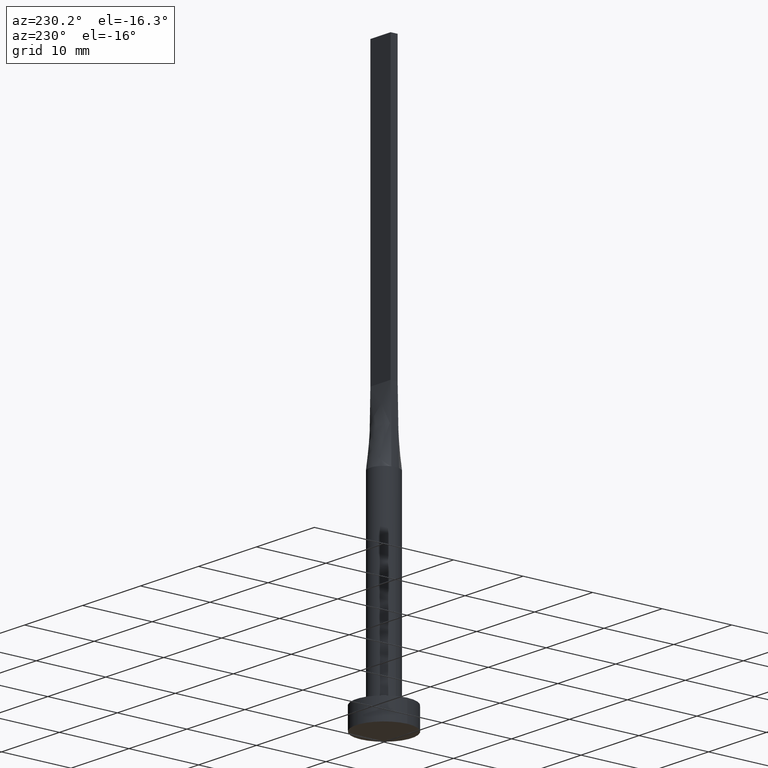
[diagram: clean part render]
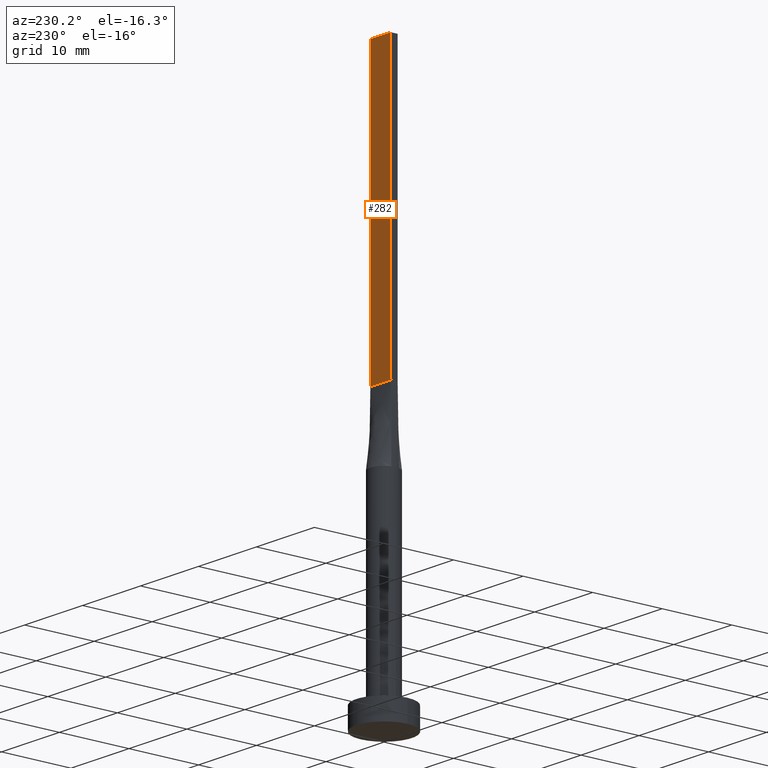
[diagram: same view with one face highlighted and labeled with its STEP entity id]
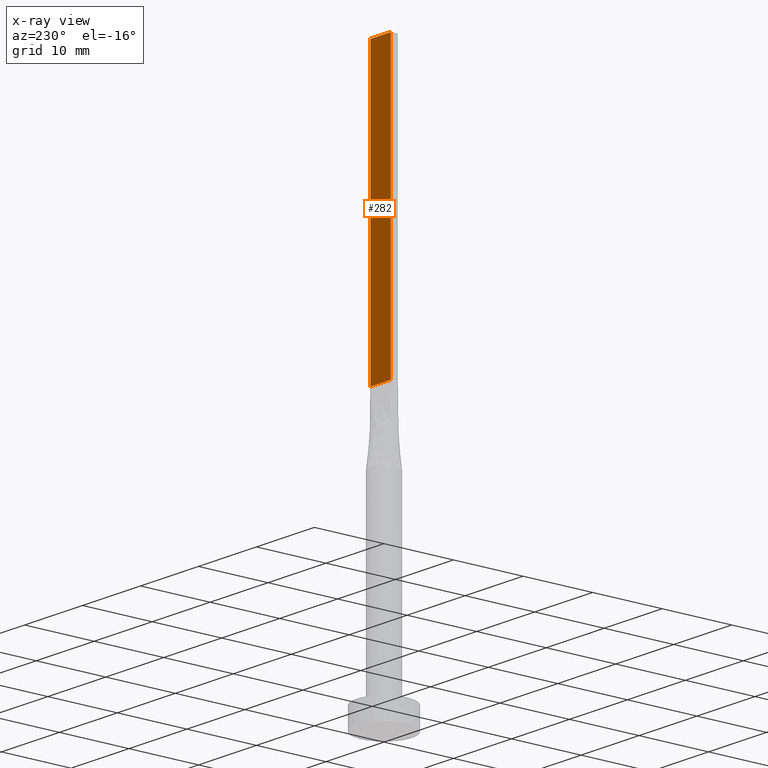
[diagram: x-ray of the same camera — body ghosted, the highlighted face saturated]
A machine part, auxiliary view. The second image highlights one B-rep face of the part: STEP entity #282.
The next image is the same camera in x-ray: the body ghosted, the highlighted face saturated — about 0% of this face is hidden behind the body in this view.
In plain terms, the highlighted planar face has unit normal (0, -1, 0).
Its self-contained STEP definition (entity closure, byte-faithful):
#28 = LINE ( 'NONE', #71, #263 ) ;
#40 = VECTOR ( 'NONE', #573, 1000.000000000000000 ) ;
#41 = LINE ( 'NONE', #391, #40 ) ;
#61 = VERTEX_POINT ( 'NONE', #210 ) ;
#71 = CARTESIAN_POINT ( 'NONE',  ( -1.749999999999999778, 0.5000000000000002220, 40.00000000000000000 ) ) ;
#125 = DIRECTION ( 'NONE',  ( -1.000000000000000000, -0.000000000000000000, -0.000000000000000000 ) ) ;
#141 = CARTESIAN_POINT ( 'NONE',  ( 1.749999999999999778, 0.5000000000000002220, 80.00000000000000000 ) ) ;
#148 = ORIENTED_EDGE ( 'NONE', *, *, #427, .T. ) ;
#192 = EDGE_LOOP ( 'NONE', ( #148, #569, #293, #304 ) ) ;
#210 = CARTESIAN_POINT ( 'NONE',  ( -1.749999999999999778, 0.5000000000000002220, 80.00000000000000000 ) ) ;
#240 = VERTEX_POINT ( 'NONE', #141 ) ;
#263 = VECTOR ( 'NONE', #125, 1000.000000000000000 ) ;
#282 = ADVANCED_FACE ( 'NONE', ( #302 ), #381, .F. ) ;
#293 = ORIENTED_EDGE ( 'NONE', *, *, #496, .F. ) ;
#294 = CARTESIAN_POINT ( 'NONE',  ( -1.749999999999999778, 0.5000000000000002220, 40.00000000000000000 ) ) ;
#302 = FACE_OUTER_BOUND ( 'NONE', #192, .T. ) ;
#304 = ORIENTED_EDGE ( 'NONE', *, *, #395, .T. ) ;
#307 = CARTESIAN_POINT ( 'NONE',  ( 1.749999999999999778, 0.5000000000000002220, 80.00000000000000000 ) ) ;
#309 = CARTESIAN_POINT ( 'NONE',  ( 1.749999999999999778, 0.5000000000000002220, 80.00000000000000000 ) ) ;
#313 = VECTOR ( 'NONE', #565, 1000.000000000000000 ) ;
#353 = VERTEX_POINT ( 'NONE', #294 ) ;
#359 = VECTOR ( 'NONE', #527, 1000.000000000000000 ) ;
#381 = PLANE ( 'NONE',  #398 ) ;
#389 = DIRECTION ( 'NONE',  ( 0.000000000000000000, -0.000000000000000000, -1.000000000000000000 ) ) ;
#391 = CARTESIAN_POINT ( 'NONE',  ( -1.749999999999999778, 0.5000000000000002220, 80.00000000000000000 ) ) ;
#395 = EDGE_CURVE ( 'NONE', #240, #546, #524, .T. ) ;
#398 = AXIS2_PLACEMENT_3D ( 'NONE', #307, #478, #389 ) ;
#427 = EDGE_CURVE ( 'NONE', #546, #353, #28, .T. ) ;
#433 = LINE ( 'NONE', #444, #359 ) ;
#444 = CARTESIAN_POINT ( 'NONE',  ( 1.749999999999999778, 0.5000000000000002220, 80.00000000000000000 ) ) ;
#478 = DIRECTION ( 'NONE',  ( 0.000000000000000000, -1.000000000000000000, 0.000000000000000000 ) ) ;
#480 = CARTESIAN_POINT ( 'NONE',  ( 1.749999999999999778, 0.5000000000000002220, 40.00000000000000000 ) ) ;
#496 = EDGE_CURVE ( 'NONE', #240, #61, #433, .T. ) ;
#524 = LINE ( 'NONE', #309, #313 ) ;
#527 = DIRECTION ( 'NONE',  ( -1.000000000000000000, 0.000000000000000000, 0.000000000000000000 ) ) ;
#546 = VERTEX_POINT ( 'NONE', #480 ) ;
#563 = EDGE_CURVE ( 'NONE', #61, #353, #41, .T. ) ;
#565 = DIRECTION ( 'NONE',  ( -0.000000000000000000, -0.000000000000000000, -1.000000000000000000 ) ) ;
#569 = ORIENTED_EDGE ( 'NONE', *, *, #563, .F. ) ;
#573 = DIRECTION ( 'NONE',  ( -0.000000000000000000, -0.000000000000000000, -1.000000000000000000 ) ) ;